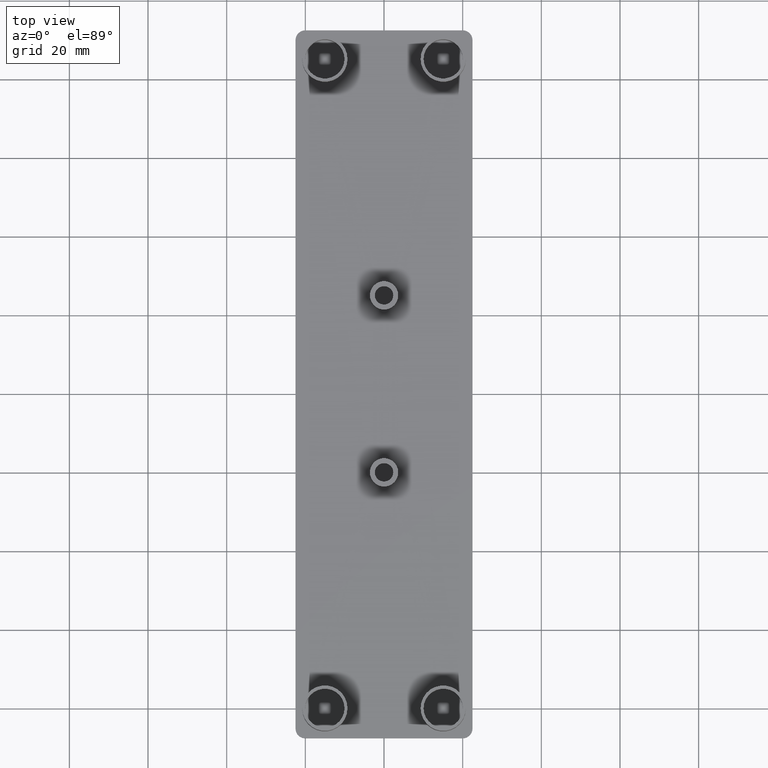
[diagram: clean part render]
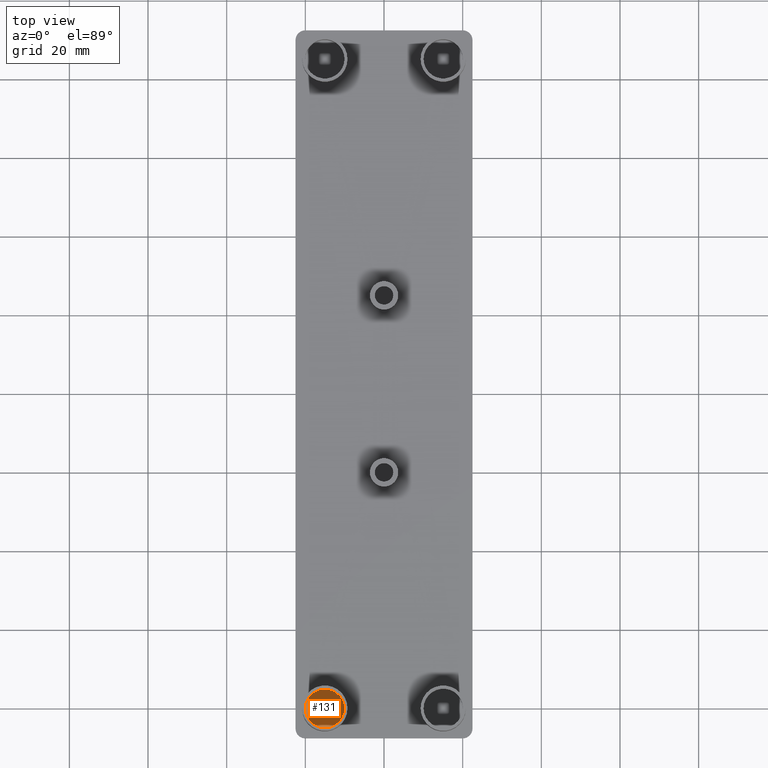
[diagram: same view with one face highlighted and labeled with its STEP entity id]
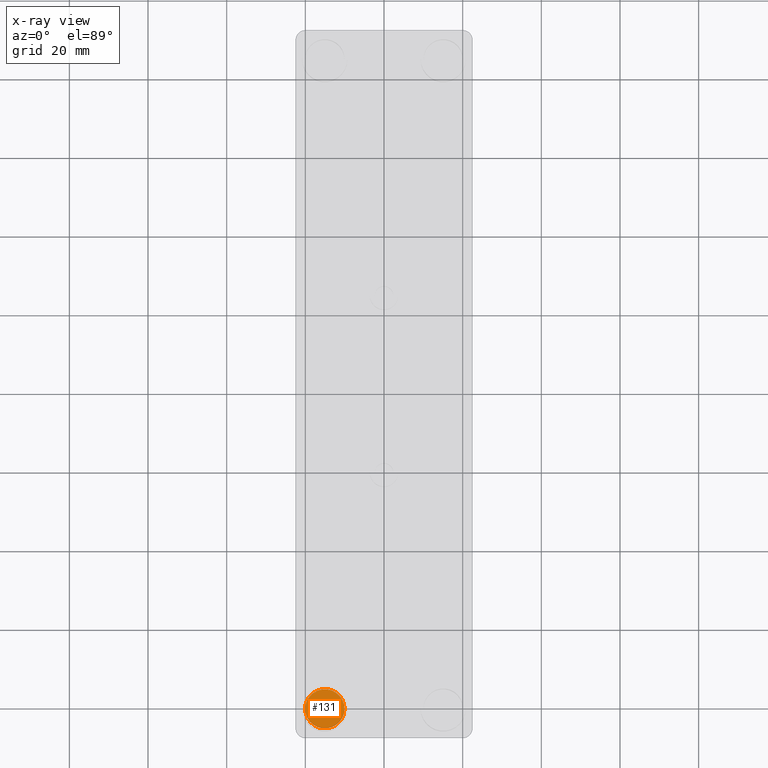
[diagram: x-ray of the same camera — body ghosted, the highlighted face saturated]
A machine part, top view. The second image highlights one B-rep face of the part: STEP entity #131.
The next image is the same camera in x-ray: the body ghosted, the highlighted face saturated — about 0% of this face is hidden behind the body in this view.
In plain terms, the highlighted planar face has unit normal (0, 0, 1).
Its self-contained STEP definition (entity closure, byte-faithful):
#106=CARTESIAN_POINT('',(-27.000009683665212,-85.500041855611016,0.0));
#107=DIRECTION('',(0.0,0.0,1.0));
#108=DIRECTION('',(1.0,0.0,0.0));
#109=AXIS2_PLACEMENT_3D('',#106,#107,#108);
#110=PLANE('',#109);
#111=CARTESIAN_POINT('',(-20.050018999916130,-60.050044999759848,0.0));
#112=VERTEX_POINT('',#111);
#113=CARTESIAN_POINT('',(-10.050018999956137,-60.050044999759848,0.0));
#114=VERTEX_POINT('',#113);
#115=CARTESIAN_POINT('',(-15.050018999936128,-60.050044999759848,0.0));
#116=DIRECTION('',(0.0,0.0,-1.0));
#117=DIRECTION('',(1.0,0.0,0.0));
#118=AXIS2_PLACEMENT_3D('',#115,#116,#117);
#119=CIRCLE('',#118,4.999999999980001);
#120=EDGE_CURVE('',#112,#114,#119,.T.);
#121=ORIENTED_EDGE('',*,*,#120,.F.);
#122=CARTESIAN_POINT('',(-15.050018999936128,-60.050044999759848,0.0));
#123=DIRECTION('',(0.0,0.0,-1.0));
#124=DIRECTION('',(1.0,0.0,0.0));
#125=AXIS2_PLACEMENT_3D('',#122,#123,#124);
#126=CIRCLE('',#125,4.999999999980001);
#127=EDGE_CURVE('',#114,#112,#126,.T.);
#128=ORIENTED_EDGE('',*,*,#127,.F.);
#129=EDGE_LOOP('',(#121,#128));
#130=FACE_OUTER_BOUND('',#129,.T.);
#131=ADVANCED_FACE('',(#130),#110,.T.);